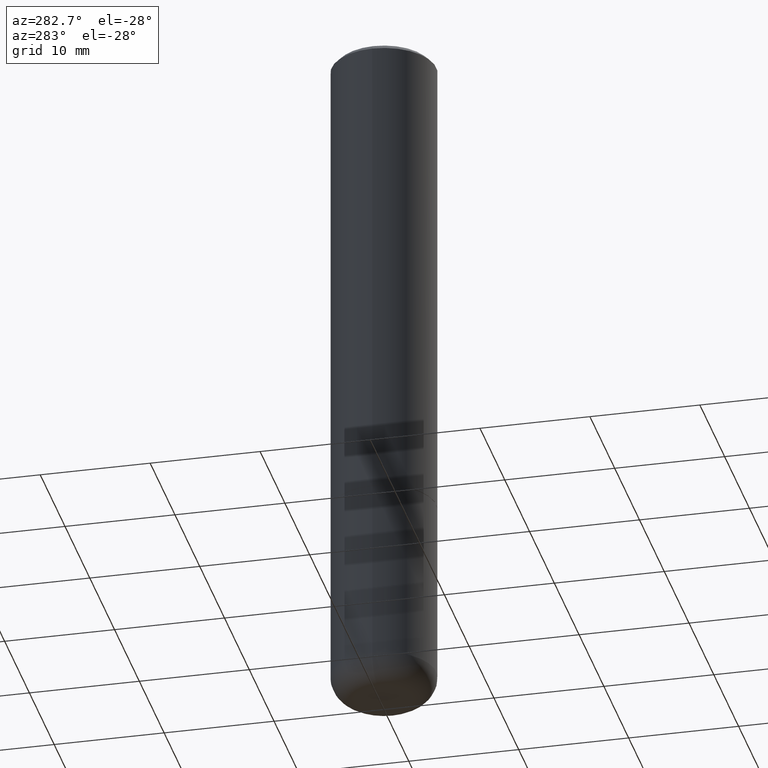
[diagram: clean part render]
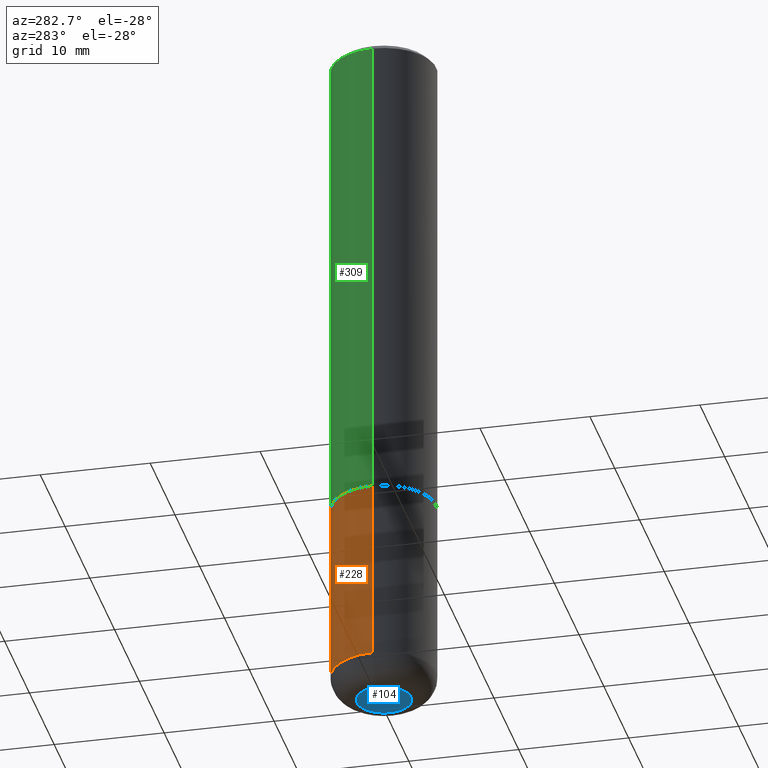
[diagram: same view with three faces highlighted in distinct colors, each labeled with its STEP entity id]
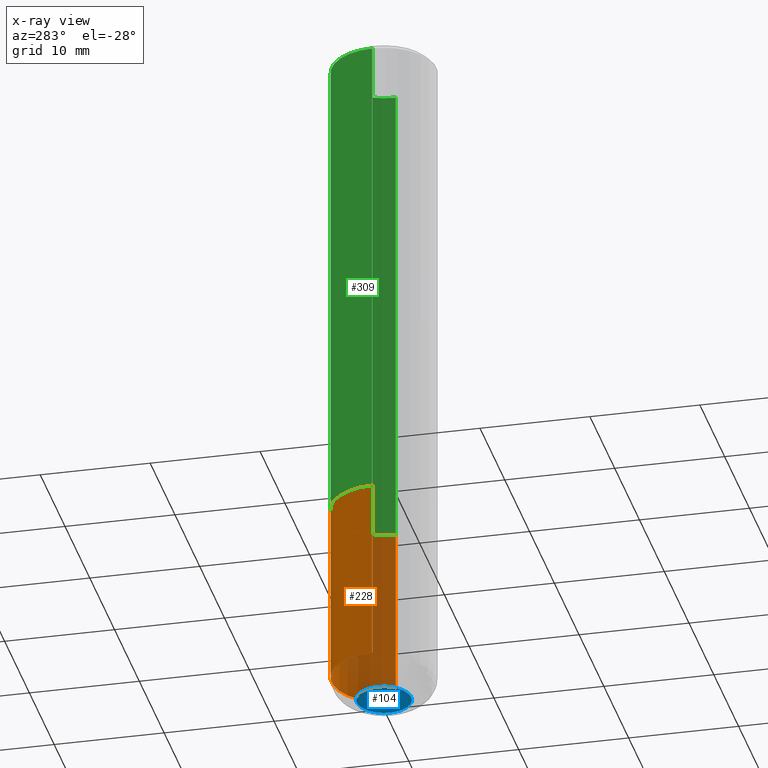
[diagram: x-ray of the same camera — body ghosted, the three highlighted faces saturated]
A machine part, auxiliary view with three faces highlighted in distinct colors.
The next image is the same camera in x-ray (body ghosted, the three faces saturated) — at least one of them is partly hidden behind the body in this view.
Their STEP definitions:

[orange] entity #228 — the highlighted cylindrical surface (partial cylindrical patch) has radius 4.7625 mm, axis along (-0, 0, 1).
#1 = EDGE_CURVE ( 'NONE', #234, #343, #133, .T. ) ;
#3 = VERTEX_POINT ( 'NONE', #364 ) ;
#9 = AXIS2_PLACEMENT_3D ( 'NONE', #304, #171, #101 ) ;
#55 = CARTESIAN_POINT ( 'NONE',  ( -0.1874999999999999722, -7.082202397061793830E-15, -2.410000000000000142 ) ) ;
#65 = ORIENTED_EDGE ( 'NONE', *, *, #106, .T. ) ;
#66 = LINE ( 'NONE', #267, #70 ) ;
#70 = VECTOR ( 'NONE', #363, 39.37007874015748143 ) ;
#71 = CARTESIAN_POINT ( 'NONE',  ( -0.1875000000000000278, -5.930013555243555721E-15, -1.750000000000000222 ) ) ;
#72 = DIRECTION ( 'NONE',  ( 1.000000000000000000, -6.982962677686261189E-15, 0.000000000000000000 ) ) ;
#73 = EDGE_CURVE ( 'NONE', #3, #161, #330, .T. ) ;
#83 = ORIENTED_EDGE ( 'NONE', *, *, #1, .F. ) ;
#84 = CARTESIAN_POINT ( 'NONE',  ( -0.1875000000000000278, 1.332267629550188046E-15, -9.223003294227947991E-30 ) ) ;
#91 = FACE_OUTER_BOUND ( 'NONE', #197, .T. ) ;
#94 = CARTESIAN_POINT ( 'NONE',  ( 0.1875000000000000278, -7.419397845041680468E-15, -1.750000000000000222 ) ) ;
#101 = DIRECTION ( 'NONE',  ( 1.000000000000000000, -6.982962677686266711E-15, 0.000000000000000000 ) ) ;
#106 = EDGE_CURVE ( 'NONE', #161, #343, #341, .T. ) ;
#133 = CIRCLE ( 'NONE', #9, 0.1875000000000000278 ) ;
#136 = ORIENTED_EDGE ( 'NONE', *, *, #274, .F. ) ;
#161 = VERTEX_POINT ( 'NONE', #55 ) ;
#169 = ORIENTED_EDGE ( 'NONE', *, *, #73, .T. ) ;
#171 = DIRECTION ( 'NONE',  ( -2.445468806185136597E-29, 3.491481338843145583E-15, 1.000000000000000000 ) ) ;
#174 = CARTESIAN_POINT ( 'NONE',  ( 5.893579822906179826E-29, -8.414470026611981678E-15, -2.410000000000000142 ) ) ;
#192 = DIRECTION ( 'NONE',  ( -2.445468806185136597E-29, 3.491481338843145583E-15, 1.000000000000000000 ) ) ;
#196 = CYLINDRICAL_SURFACE ( 'NONE', #232, 0.1875000000000000278 ) ;
#197 = EDGE_LOOP ( 'NONE', ( #169, #65, #83, #136 ) ) ;
#228 = ADVANCED_FACE ( 'NONE', ( #91 ), #196, .T. ) ;
#232 = AXIS2_PLACEMENT_3D ( 'NONE', #356, #192, #260 ) ;
#234 = VERTEX_POINT ( 'NONE', #94 ) ;
#260 = DIRECTION ( 'NONE',  ( 1.000000000000000000, -6.982962677686265922E-15, 4.876176775795935793E-29 ) ) ;
#267 = CARTESIAN_POINT ( 'NONE',  ( 0.1875000000000000278, -1.309305502066175008E-15, 9.142831454617381013E-30 ) ) ;
#274 = EDGE_CURVE ( 'NONE', #3, #234, #66, .T. ) ;
#304 = CARTESIAN_POINT ( 'NONE',  ( 4.279570410823989044E-29, -6.110092342975505460E-15, -1.750000000000000222 ) ) ;
#307 = DIRECTION ( 'NONE',  ( -2.445468806185136597E-29, 3.491481338843145583E-15, 1.000000000000000000 ) ) ;
#330 = CIRCLE ( 'NONE', #346, 0.1875000000000000278 ) ;
#341 = LINE ( 'NONE', #84, #355 ) ;
#343 = VERTEX_POINT ( 'NONE', #71 ) ;
#346 = AXIS2_PLACEMENT_3D ( 'NONE', #174, #307, #72 ) ;
#352 = DIRECTION ( 'NONE',  ( -2.445468806185136877E-29, 3.491481338843145188E-15, 1.000000000000000000 ) ) ;
#355 = VECTOR ( 'NONE', #352, 39.37007874015748143 ) ;
#356 = CARTESIAN_POINT ( 'NONE',  ( 0.000000000000000000, 0.000000000000000000, 0.000000000000000000 ) ) ;
#363 = DIRECTION ( 'NONE',  ( -2.445468806185136877E-29, 3.491481338843145188E-15, 1.000000000000000000 ) ) ;
#364 = CARTESIAN_POINT ( 'NONE',  ( 0.1874999999999999722, -9.723775528678158264E-15, -2.410000000000000142 ) ) ;

[blue] entity #104 — the highlighted planar face has unit normal (0, -0, -1).
#8 = DIRECTION ( 'NONE',  ( 1.000000000000000000, -6.982962677686265922E-15, 0.000000000000000000 ) ) ;
#59 = AXIS2_PLACEMENT_3D ( 'NONE', #200, #168, #8 ) ;
#104 = ADVANCED_FACE ( 'NONE', ( #406 ), #215, .T. ) ;
#141 = CARTESIAN_POINT ( 'NONE',  ( -0.09750000000000003109, -7.559063288401780041E-15, -2.500000000000000000 ) ) ;
#149 = ORIENTED_EDGE ( 'NONE', *, *, #380, .F. ) ;
#157 = CARTESIAN_POINT ( 'NONE',  ( 6.113672015462842613E-29, -8.728703347107864943E-15, -2.500000000000000000 ) ) ;
#168 = DIRECTION ( 'NONE',  ( -2.445468806185136597E-29, 3.491481338843145583E-15, 1.000000000000000000 ) ) ;
#173 = CARTESIAN_POINT ( 'NONE',  ( 6.113672015462842613E-29, -8.728703347107864943E-15, -2.500000000000000000 ) ) ;
#199 = CIRCLE ( 'NONE', #369, 0.09750000000000003109 ) ;
#200 = CARTESIAN_POINT ( 'NONE',  ( 6.113672015462842613E-29, -8.728703347107864943E-15, -2.500000000000000000 ) ) ;
#215 = PLANE ( 'NONE',  #305 ) ;
#239 = EDGE_LOOP ( 'NONE', ( #327, #149 ) ) ;
#241 = DIRECTION ( 'NONE',  ( 1.000000000000000000, -6.982962677686265922E-15, 0.000000000000000000 ) ) ;
#250 = DIRECTION ( 'NONE',  ( -1.000000000000000000, 6.982962677686265922E-15, -4.876176775795935793E-29 ) ) ;
#305 = AXIS2_PLACEMENT_3D ( 'NONE', #157, #313, #250 ) ;
#306 = DIRECTION ( 'NONE',  ( -2.445468806185136597E-29, 3.491481338843145583E-15, 1.000000000000000000 ) ) ;
#310 = VERTEX_POINT ( 'NONE', #141 ) ;
#313 = DIRECTION ( 'NONE',  ( 2.438088387897960049E-29, -3.491481338843145188E-15, -1.000000000000000000 ) ) ;
#316 = VERTEX_POINT ( 'NONE', #400 ) ;
#327 = ORIENTED_EDGE ( 'NONE', *, *, #357, .F. ) ;
#357 = EDGE_CURVE ( 'NONE', #316, #310, #384, .T. ) ;
#369 = AXIS2_PLACEMENT_3D ( 'NONE', #173, #306, #241 ) ;
#380 = EDGE_CURVE ( 'NONE', #310, #316, #199, .T. ) ;
#384 = CIRCLE ( 'NONE', #59, 0.09750000000000003109 ) ;
#400 = CARTESIAN_POINT ( 'NONE',  ( 0.09750000000000003109, -9.409542208182275000E-15, -2.500000000000000000 ) ) ;
#406 = FACE_OUTER_BOUND ( 'NONE', #239, .T. ) ;

[green] entity #309 — the highlighted cylindrical surface (partial cylindrical patch) has radius 4.7625 mm, axis along (-0, 0, 1).
#22 = ORIENTED_EDGE ( 'NONE', *, *, #410, .T. ) ;
#33 = AXIS2_PLACEMENT_3D ( 'NONE', #38, #269, #100 ) ;
#38 = CARTESIAN_POINT ( 'NONE',  ( 0.000000000000000000, 0.000000000000000000, 0.000000000000000000 ) ) ;
#40 = CARTESIAN_POINT ( 'NONE',  ( 0.1875000000000000555, -1.356173001359025663E-15, -0.02000000000000004205 ) ) ;
#43 = CARTESIAN_POINT ( 'NONE',  ( -0.1875000000000000555, 1.239475875289312104E-15, -0.02000000000000004205 ) ) ;
#46 = VERTEX_POINT ( 'NONE', #43 ) ;
#74 = LINE ( 'NONE', #79, #266 ) ;
#79 = CARTESIAN_POINT ( 'NONE',  ( -0.1875000000000001110, 1.332267629550188637E-15, -9.223003294227953596E-30 ) ) ;
#90 = CARTESIAN_POINT ( 'NONE',  ( 0.1875000000000001943, -7.415906363702837461E-15, -1.749000000000000110 ) ) ;
#100 = DIRECTION ( 'NONE',  ( 1.000000000000000000, -6.982962677686266711E-15, 4.876176775795935793E-29 ) ) ;
#110 = ORIENTED_EDGE ( 'NONE', *, *, #221, .F. ) ;
#127 = CARTESIAN_POINT ( 'NONE',  ( 4.890937612370283668E-31, -6.982962677686305168E-17, -0.02000000000000004205 ) ) ;
#132 = DIRECTION ( 'NONE',  ( -2.445468806185136597E-29, 3.491481338843145583E-15, 1.000000000000000000 ) ) ;
#135 = CARTESIAN_POINT ( 'NONE',  ( 0.1875000000000001110, -1.309305502066175797E-15, 9.142831454617385217E-30 ) ) ;
#165 = VECTOR ( 'NONE', #204, 39.37007874015748143 ) ;
#175 = FACE_OUTER_BOUND ( 'NONE', #370, .T. ) ;
#193 = CARTESIAN_POINT ( 'NONE',  ( 4.277124942017804562E-29, -6.106600861636661664E-15, -1.749000000000000110 ) ) ;
#198 = EDGE_CURVE ( 'NONE', #211, #377, #393, .T. ) ;
#204 = DIRECTION ( 'NONE',  ( -2.445468806185136877E-29, 3.491481338843145188E-15, 1.000000000000000000 ) ) ;
#211 = VERTEX_POINT ( 'NONE', #90 ) ;
#221 = EDGE_CURVE ( 'NONE', #254, #46, #259, .T. ) ;
#254 = VERTEX_POINT ( 'NONE', #40 ) ;
#259 = CIRCLE ( 'NONE', #325, 0.1875000000000000555 ) ;
#262 = CARTESIAN_POINT ( 'NONE',  ( -0.1875000000000001943, -1.755947614656571871E-15, -1.749000000000000110 ) ) ;
#266 = VECTOR ( 'NONE', #311, 39.37007874015748143 ) ;
#269 = DIRECTION ( 'NONE',  ( -2.445468806185136597E-29, 3.491481338843145583E-15, 1.000000000000000000 ) ) ;
#294 = DIRECTION ( 'NONE',  ( -2.445468806185136597E-29, 3.491481338843145583E-15, 1.000000000000000000 ) ) ;
#299 = ORIENTED_EDGE ( 'NONE', *, *, #198, .T. ) ;
#302 = AXIS2_PLACEMENT_3D ( 'NONE', #193, #294, #417 ) ;
#308 = CYLINDRICAL_SURFACE ( 'NONE', #33, 0.1875000000000001110 ) ;
#309 = ADVANCED_FACE ( 'NONE', ( #175 ), #308, .T. ) ;
#311 = DIRECTION ( 'NONE',  ( -2.445468806185136877E-29, 3.491481338843145188E-15, 1.000000000000000000 ) ) ;
#323 = EDGE_CURVE ( 'NONE', #211, #254, #335, .T. ) ;
#325 = AXIS2_PLACEMENT_3D ( 'NONE', #127, #132, #386 ) ;
#335 = LINE ( 'NONE', #135, #165 ) ;
#370 = EDGE_LOOP ( 'NONE', ( #299, #22, #110, #397 ) ) ;
#377 = VERTEX_POINT ( 'NONE', #262 ) ;
#386 = DIRECTION ( 'NONE',  ( 1.000000000000000000, -6.982962677686265922E-15, 0.000000000000000000 ) ) ;
#393 = CIRCLE ( 'NONE', #302, 0.1875000000000001943 ) ;
#397 = ORIENTED_EDGE ( 'NONE', *, *, #323, .F. ) ;
#410 = EDGE_CURVE ( 'NONE', #377, #46, #74, .T. ) ;
#417 = DIRECTION ( 'NONE',  ( 1.000000000000000000, -6.982962677686265922E-15, 0.000000000000000000 ) ) ;